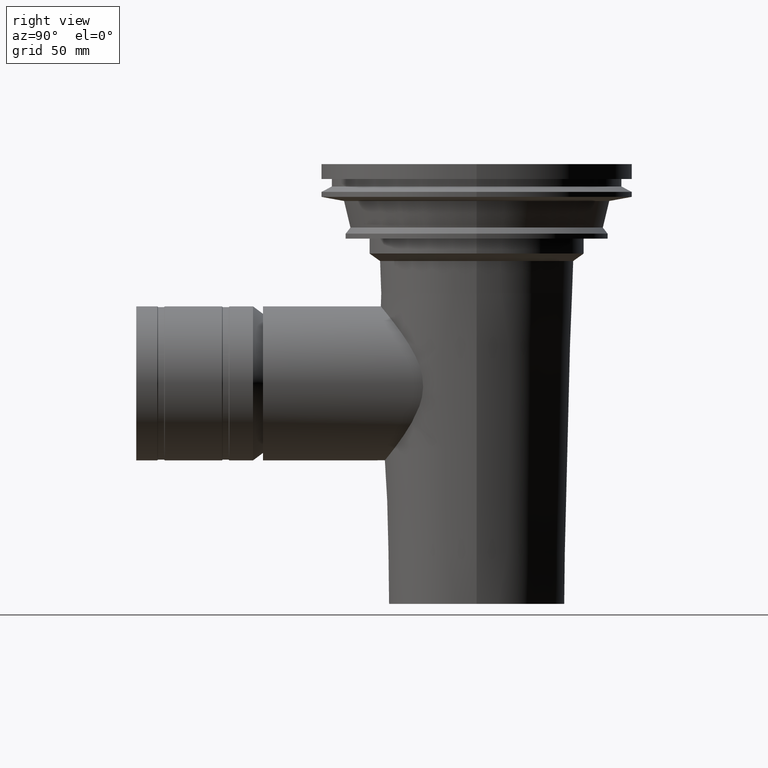
[diagram: clean part render]
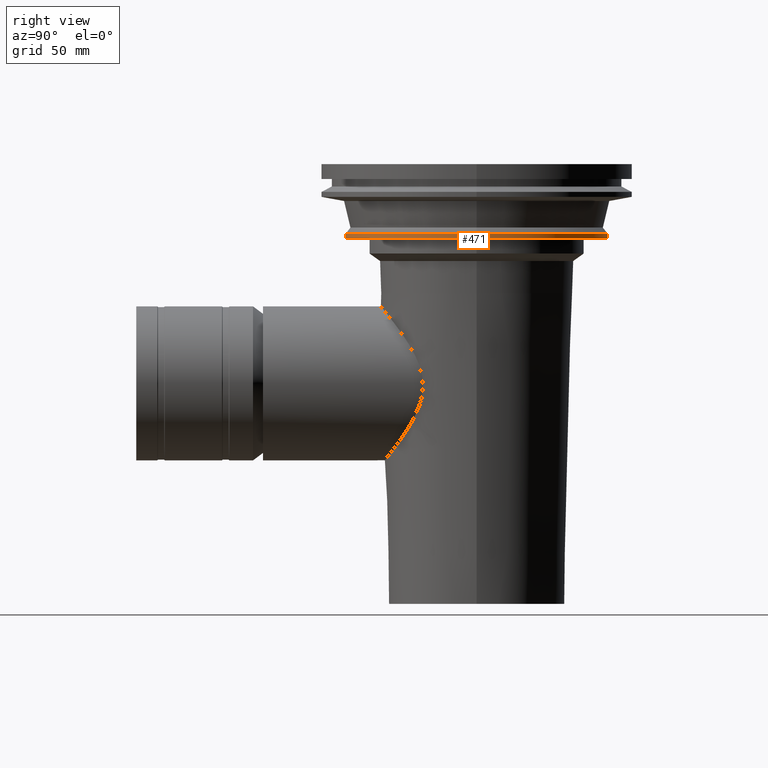
[diagram: same view with one face highlighted and labeled with its STEP entity id]
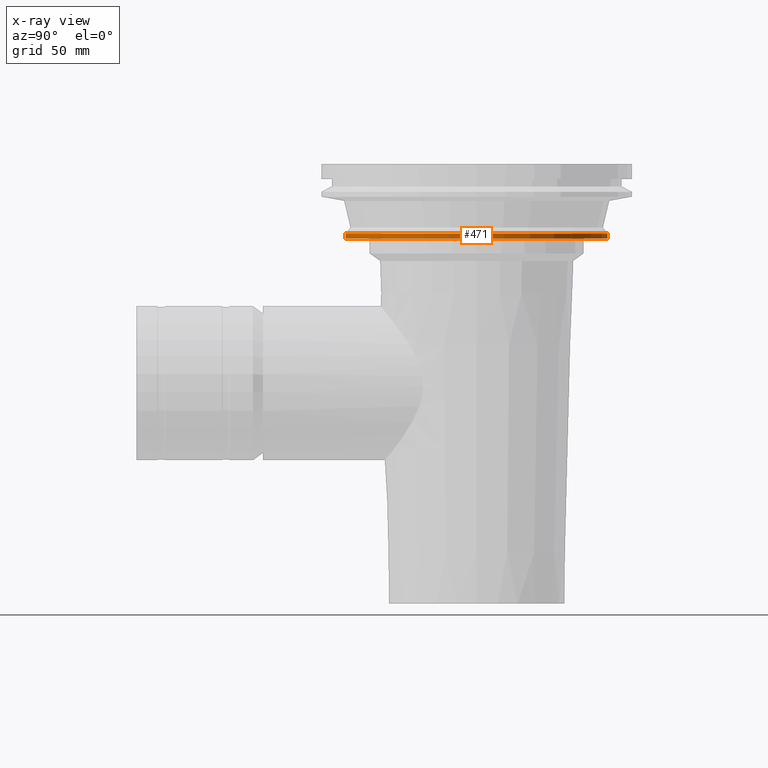
[diagram: x-ray of the same camera — body ghosted, the highlighted face saturated]
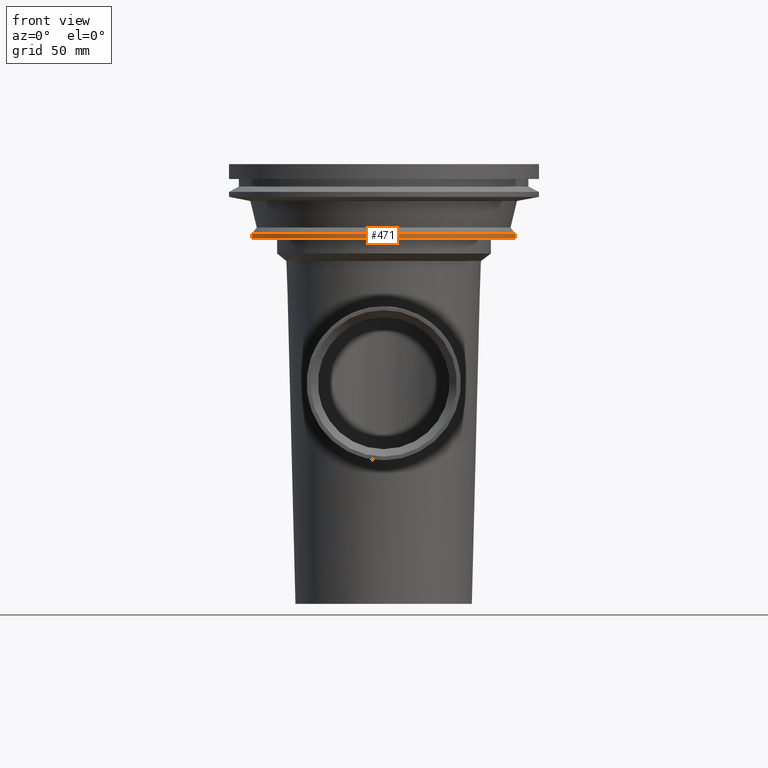
[diagram: same view with one face highlighted and labeled with its STEP entity id]
A machine part, right view. The second image highlights one B-rep face of the part: STEP entity #471.
The next image is the same camera in x-ray: the body ghosted, the highlighted face saturated — about 0% of this face is hidden behind the body in this view.
A second angle (front view) of the same face is appended — the face is thin or edge-on in the first view.
In plain terms, the highlighted cylindrical surface (bore or boss wall) has radius 53 mm, axis along (0, 0, 1).
Its self-contained STEP definition (entity closure, byte-faithful):
#94=ORIENTED_EDGE('',*,*,#161,.T.);
#95=ORIENTED_EDGE('',*,*,#160,.F.);
#160=EDGE_CURVE('',#203,#203,#244,.T.);
#161=EDGE_CURVE('',#204,#204,#245,.T.);
#203=VERTEX_POINT('',#932);
#204=VERTEX_POINT('',#935);
#244=CIRCLE('',#550,53.);
#245=CIRCLE('',#552,53.);
#307=EDGE_LOOP('',(#94));
#308=EDGE_LOOP('',(#95));
#393=FACE_BOUND('',#307,.T.);
#394=FACE_BOUND('',#308,.T.);
#441=CYLINDRICAL_SURFACE('',#551,53.);
#471=ADVANCED_FACE('',(#393,#394),#441,.T.);
#550=AXIS2_PLACEMENT_3D('',#931,#681,#682);
#551=AXIS2_PLACEMENT_3D('',#933,#683,#684);
#552=AXIS2_PLACEMENT_3D('',#934,#685,#686);
#681=DIRECTION('',(0.,0.,1.));
#682=DIRECTION('',(1.,0.,0.));
#683=DIRECTION('',(0.,0.,1.));
#684=DIRECTION('',(1.,0.,0.));
#685=DIRECTION('',(0.,0.,1.));
#686=DIRECTION('',(1.,0.,0.));
#931=CARTESIAN_POINT('',(0.,0.,-28.0001386583387));
#932=CARTESIAN_POINT('',(53.,0.,-28.0001386583387));
#933=CARTESIAN_POINT('',(0.,0.,50.));
#934=CARTESIAN_POINT('',(0.,0.,-30.));
#935=CARTESIAN_POINT('',(53.,0.,-30.));